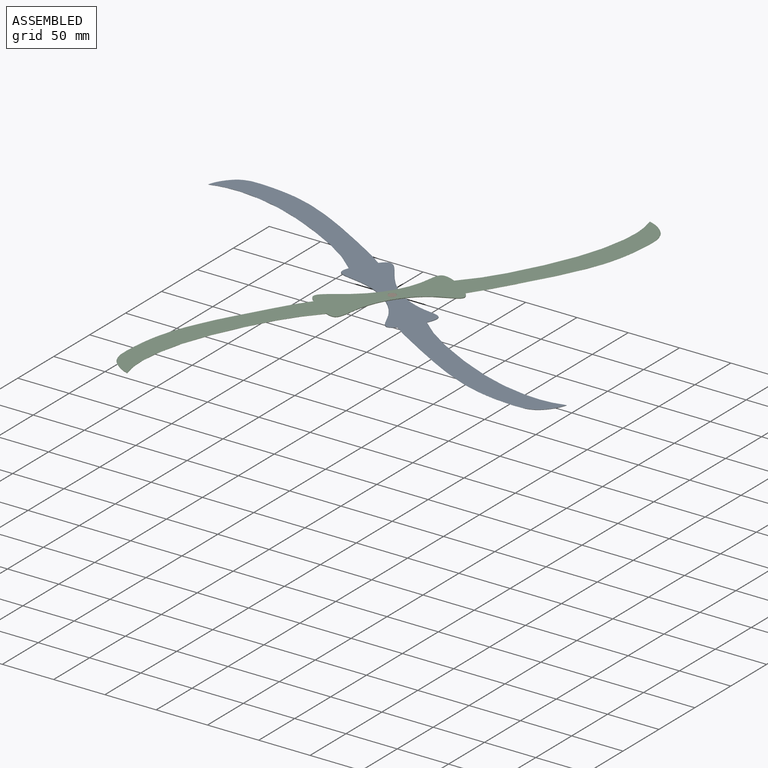
[diagram: assembled view]
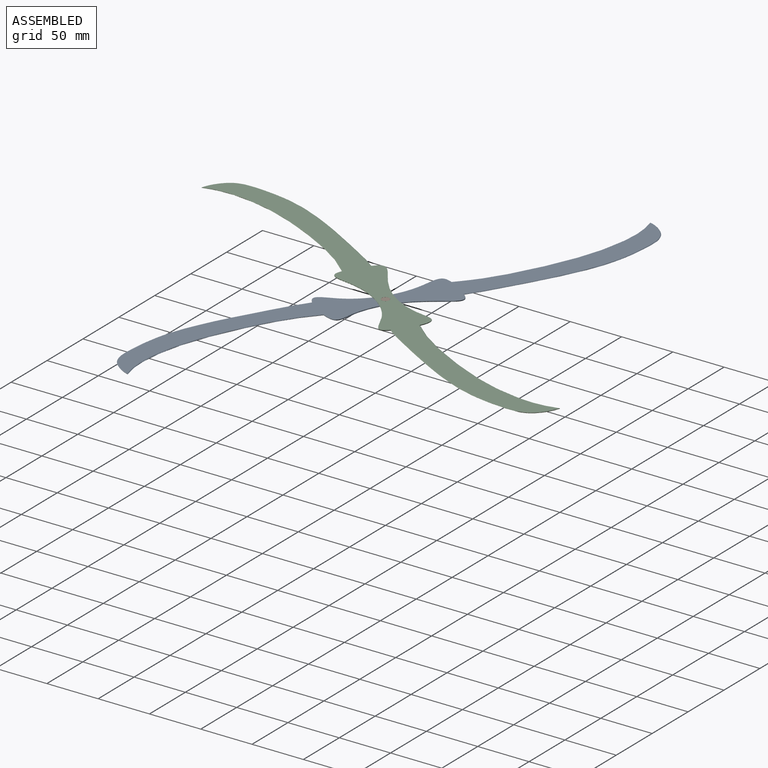
[diagram: assembled view, second angle]
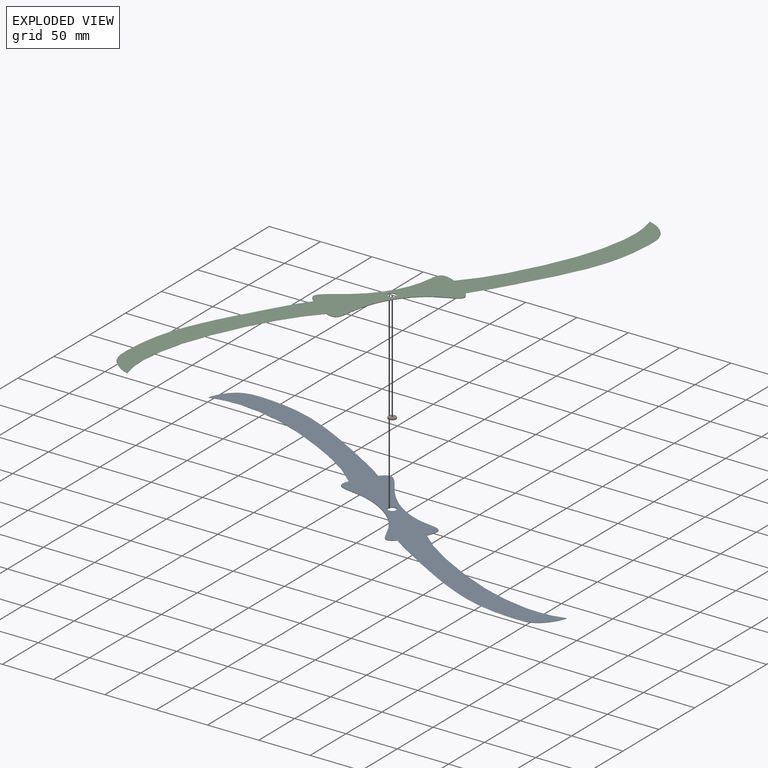
[diagram: exploded view]
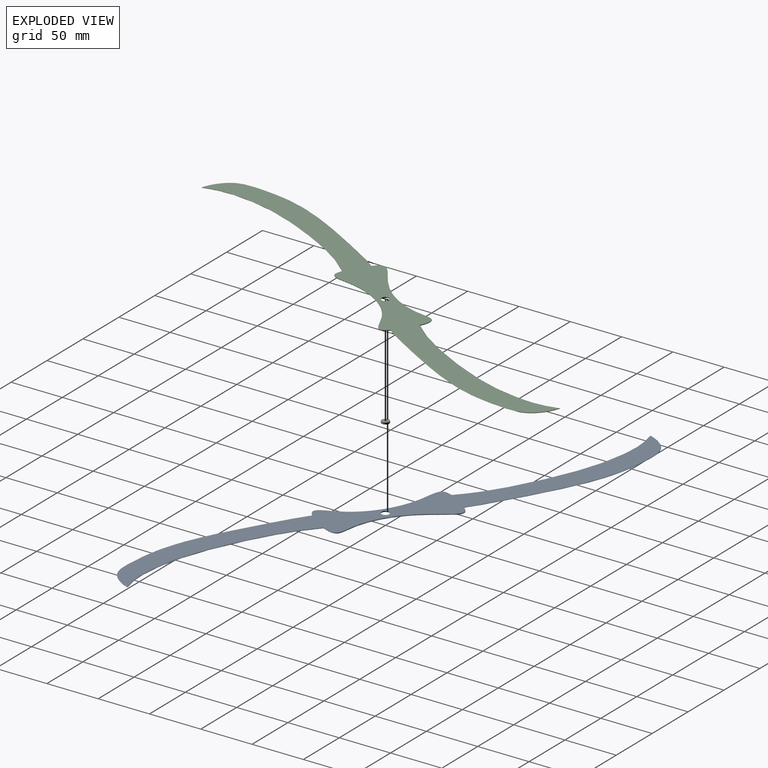
[diagram: exploded view, second angle]
ASSEMBLY  parts=3 mates=2
PART A: 23 faces, bbox 227.8x485.8x1 mm
  f0: extruded ~183.03x69.26mm, area 5.3mm2, adj f6,f8,f9,f21
  f1: extruded ~170.22x68.81mm, area 3.9mm2, adj f4,f5,f6,f20
  f2: plane 472.69x226.57mm, normal (0,0,1), area 11314.3mm2, adj f5,f7,f8,f15,f17,f18,f20,f21
  f3: plane 473.27x226.36mm, normal (0,0,-1), area 11565.1mm2, adj f4,f6,f9,f10,f11,f14,f16,f19
  f4: bspline ~183.37x73.6mm, area 133.2mm2, adj f1,f3,f6,f10,f20
  f5: bspline ~171.75x69.58mm, area 133.2mm2, adj f1,f2,f6,f7,f20
  f6: bspline ~27.71x26.93mm, area 20.5mm2, adj f0,f1,f3,f4,f5,f7,f8,f9
  f7: bspline ~25.31x24.65mm, area 22.1mm2, adj f2,f5,f6,f8
  f8: bspline ~196.55x76.91mm, area 142.4mm2, adj f0,f2,f6,f7,f21
  f9: bspline ~196.17x76.7mm, area 108.2mm2, adj f0,f3,f6,f11,f21
  f10: extruded ~99.17x75.48mm, area 43mm2, adj f3,f4,f19,f20
  f11: extruded ~97.59x73.36mm, area 41.9mm2, adj f3,f9,f14,f21
  f12: extruded ~181.41x67.74mm, area 5.2mm2, adj f16,f18,f19,f20
  f13: extruded ~169.07x67.89mm, area 3.9mm2, adj f14,f15,f16,f21
  f14: bspline ~179.21x69.82mm, area 132.2mm2, adj f3,f11,f13,f16,f21
  f15: bspline ~170.55x68.62mm, area 132.1mm2, adj f2,f13,f16,f17,f21
  f16: bspline ~27.71x26.93mm, area 20.5mm2, adj f3,f12,f13,f14,f15,f17,f18,f19
  f17: bspline ~25.31x24.65mm, area 22.1mm2, adj f2,f15,f16,f18
  f18: bspline ~196.55x76.91mm, area 140.8mm2, adj f2,f12,f16,f17,f20
  f19: bspline ~196.17x76.7mm, area 107mm2, adj f3,f10,f12,f16,f20
  f20: bspline ~99.9x76.61mm, area 103.8mm2, adj f1,f2,f4,f5,f10,f12,f18,f19
  f21: bspline ~97.93x74.98mm, area 101.2mm2, adj f0,f2,f8,f9,f11,f13,f14,f15
  f22: cylinder r=3.81mm len=7.62mm, axis (0,0,-1), area 19mm2, adj f2,f3
PART B: 3 faces, bbox 7.5x7.5x1.6 mm
  f0: cylinder r=3.75mm len=7.5mm, axis (0,0,-1), area 37.4mm2, adj f1,f2
  f1: plane 7.5x7.5mm, normal (0,0,1), area 44.2mm2, adj f0
  f2: plane 7.5x7.5mm, normal (0,0,-1), area 44.2mm2, adj f0
PART C: 23 faces, bbox 227.8x485.8x1 mm
  f0: extruded ~183.03x69.26mm, area 5.2mm2, adj f6,f8,f9,f20
  f1: extruded ~170.22x68.81mm, area 3.9mm2, adj f4,f5,f6,f21
  f2: plane 472.69x226.57mm, normal (0,0,1), area 11448.1mm2, adj f5,f7,f8,f10,f11,f15,f17,f18
  f3: plane 473.27x226.36mm, normal (0,0,-1), area 11435mm2, adj f4,f6,f9,f14,f16,f19,f20,f21
  f4: bspline ~173.51x69.57mm, area 133.4mm2, adj f1,f3,f6,f21
  f5: bspline ~181.61x73.6mm, area 133mm2, adj f1,f2,f6,f7,f10,f21
  f6: bspline ~27.71x26.93mm, area 20.5mm2, adj f0,f1,f3,f4,f5,f7,f8,f9
  f7: bspline ~25.31x24.65mm, area 22.1mm2, adj f2,f5,f6,f8
  f8: bspline ~196.55x76.91mm, area 142.3mm2, adj f0,f2,f6,f7,f11,f20
  f9: bspline ~196.17x76.71mm, area 108.3mm2, adj f0,f3,f6,f20
  f10: extruded ~99.18x75.68mm, area 43mm2, adj f2,f5,f18,f21
  f11: extruded ~97.59x73.56mm, area 42mm2, adj f2,f8,f15,f20
  f12: extruded ~181.41x67.74mm, area 5.2mm2, adj f16,f18,f19,f21
  f13: extruded ~169.07x67.89mm, area 3.9mm2, adj f14,f15,f16,f20
  f14: bspline ~172.32x68.61mm, area 132.4mm2, adj f3,f13,f16,f20
  f15: bspline ~177.48x69.85mm, area 131.9mm2, adj f2,f11,f13,f16,f17,f20
  f16: bspline ~27.71x26.93mm, area 20.5mm2, adj f3,f12,f13,f14,f15,f17,f18,f19
  f17: bspline ~25.31x24.65mm, area 22.1mm2, adj f2,f15,f16,f18
  f18: bspline ~196.55x76.91mm, area 140.8mm2, adj f2,f10,f12,f16,f17,f21
  f19: bspline ~196.17x76.71mm, area 107.1mm2, adj f3,f12,f16,f21
  f20: bspline ~98.76x74.35mm, area 101.4mm2, adj f0,f3,f8,f9,f11,f13,f14,f15
  f21: bspline ~99.8x78.13mm, area 104.1mm2, adj f1,f3,f4,f5,f10,f12,f18,f19
  f22: cylinder r=3.81mm len=7.62mm, axis (0,0,1), area 19mm2, adj f2,f3
PLACE A rot(axis=(0,0,-1),90deg) t=(72.91,-143.96,-0.79)mm
PLACE B t=(143.95,72.89,-0.01)mm fixed
PLACE C rot(axis=(0,0,1),0deg) t=(143.95,72.9,0.82)mm
MATE revolute B.f0 <-> C.f22  axis (0,0,1) through (0,0,0.79)mm
MATE revolute A.f22 <-> B.f0  axis (0,0,-1) through (0,0,-0.79)mm
